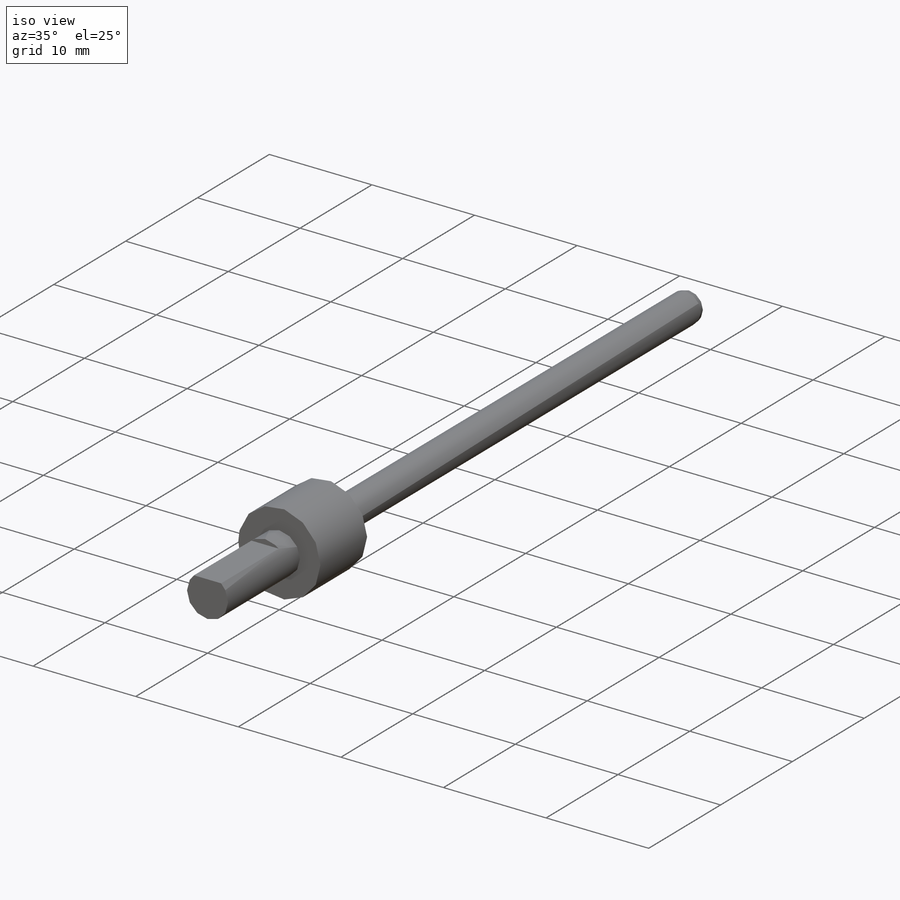
[diagram: iso view]
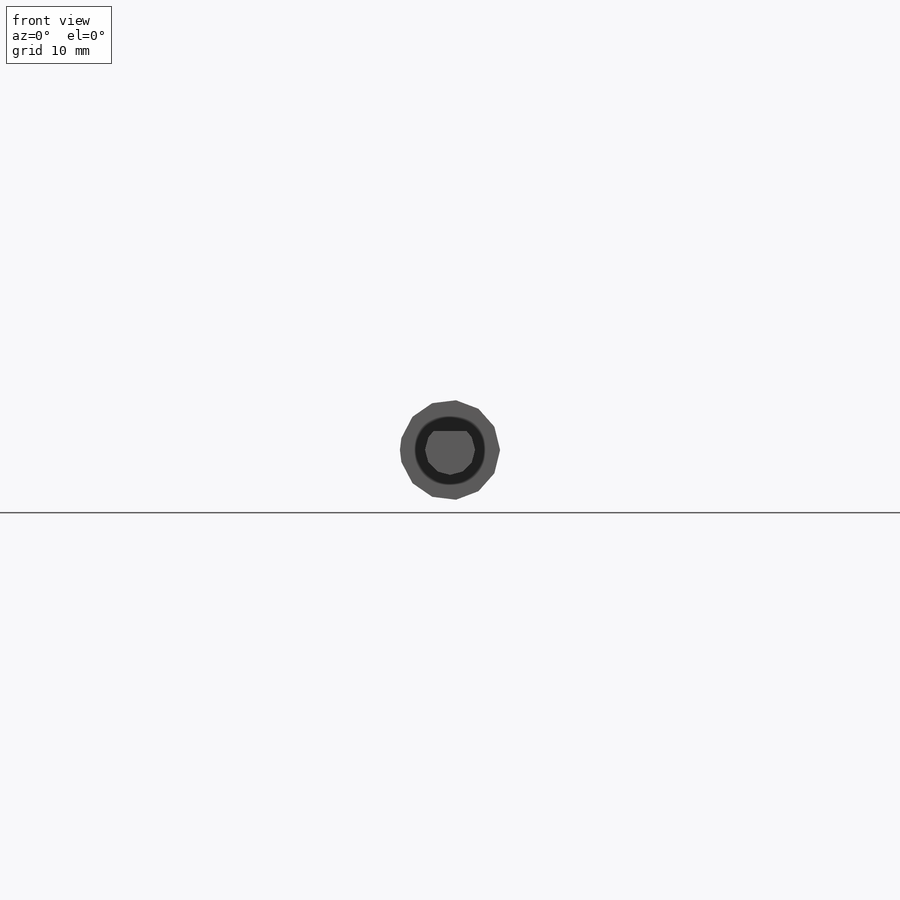
[diagram: front view]
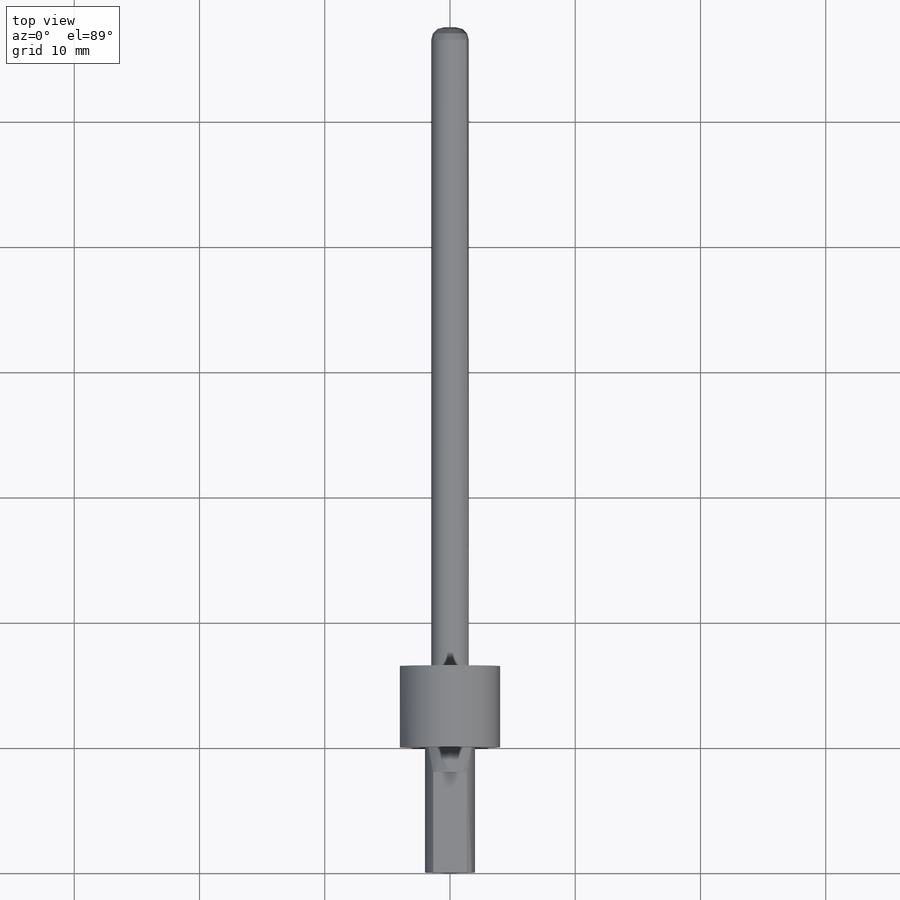
[diagram: top view]
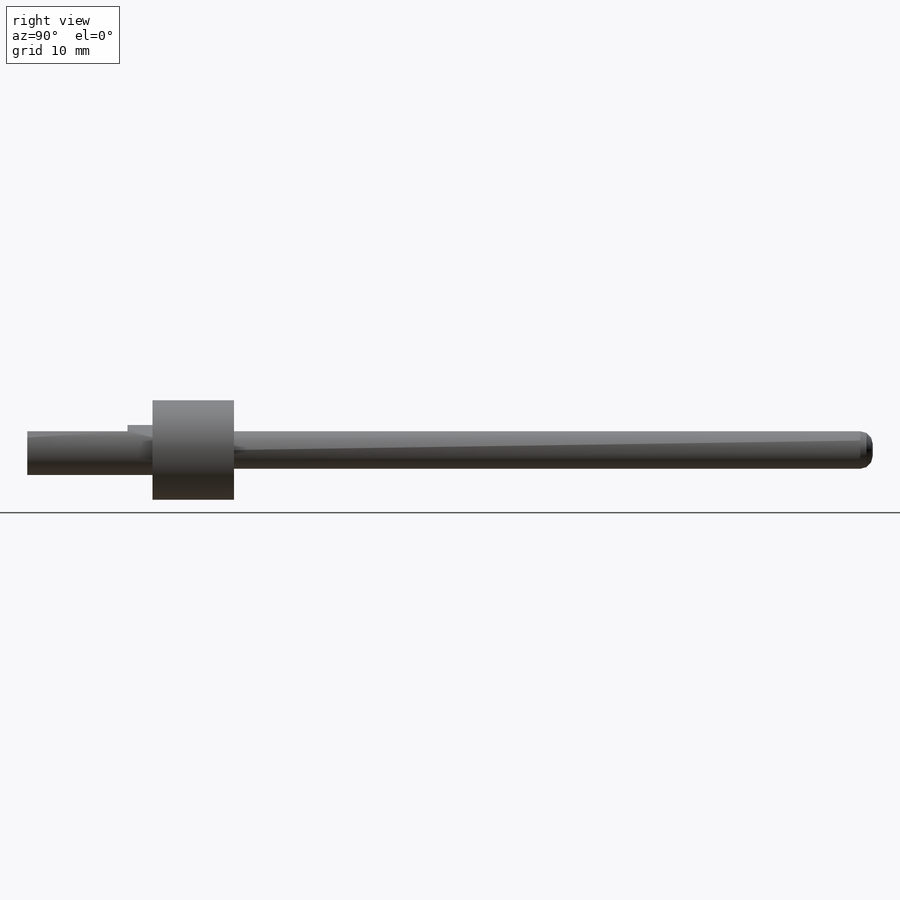
[diagram: right view]
SOLIDWORKS PART (.sldprt)
format: sldprt  version: not decoded by parser v0  size: 160,256 bytes
history: native  units: mm
features: sketch x4, extrude x3, material x1, plane x1, cut_extrude x1, fillet x1 (+11 scaffold rows collapsed)
feature tree (22):
  scaffold x11  (default folders/planes/origin — collapsed)
  material  "Material <not specified>"
  plane  "Plane2"  Offset=33.1mm
  sketch  "Sketch1"  dims[D1=4.0mm]
  extrude  "Extrude1"  Depth=10mm
  sketch  "Sketch2"  dims[D1=1.5mm]
  cut_extrude  "Extrude2"  Depth=8mm
  sketch  "Sketch3"  dims[D1=8.0mm]
  extrude  "Extrude3"  Depth=6.5mm
  sketch  "Sketch19"  dims[D1=3.0mm]
  extrude  "Extrude13"  Depth=51mm
  fillet  "Fillet11"  Radius=1mm
decode coverage: 9 of 9 modeling features carry decoded parameters
note: suppression state not decoded; provenance and decode notes live in map.json
